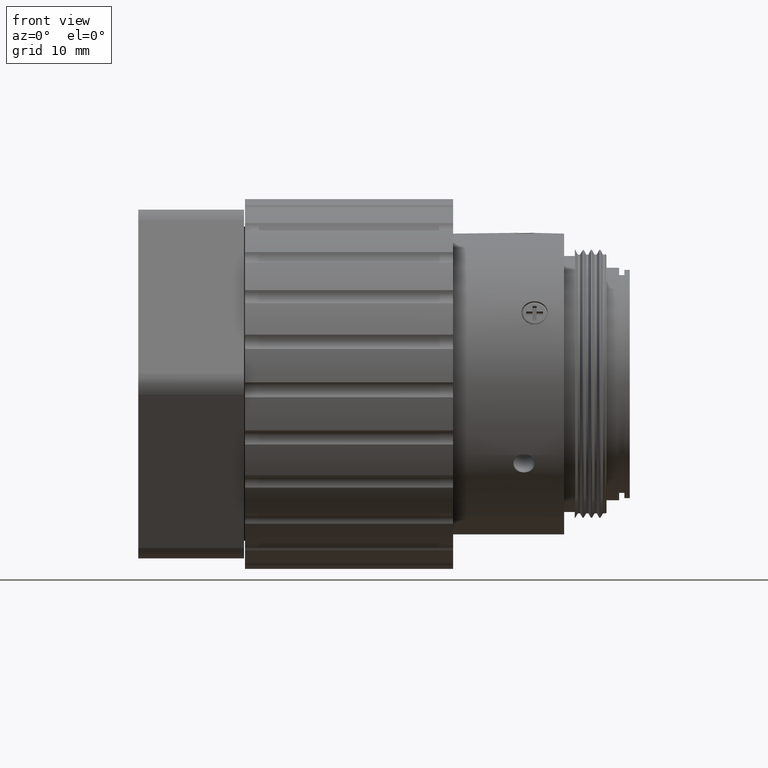
[diagram: clean part render]
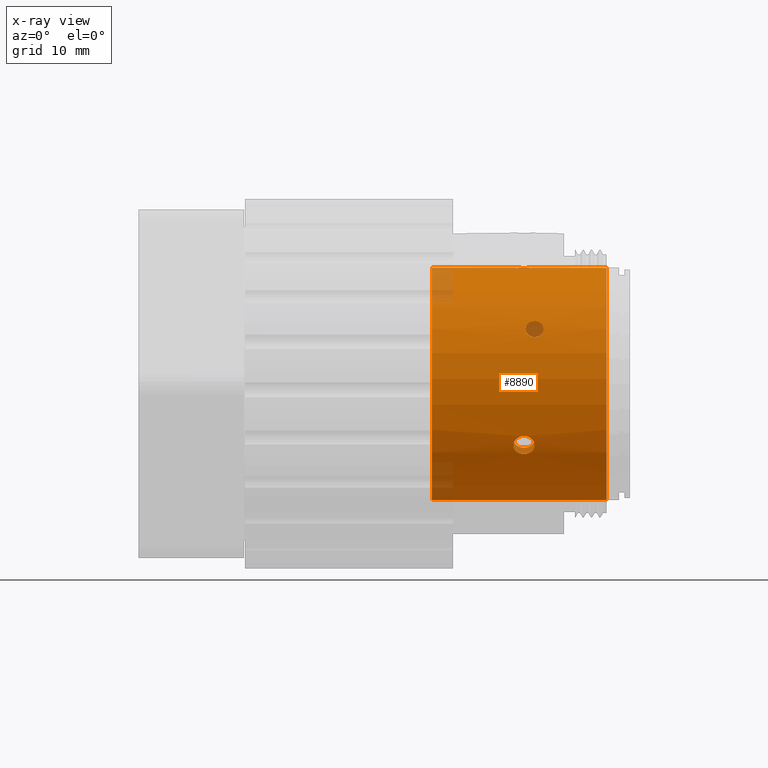
[diagram: x-ray — body ghosted, one internal face saturated and labeled with its STEP entity id]
A machine part, front view, then the same camera in x-ray: the body is ghosted and one INTERNAL B-rep face — a face not visible from any outside direction — is saturated and labeled: STEP entity #8890.
In plain terms, the highlighted cylindrical surface (bore or boss wall) has radius 11 mm, axis along (-1, 0, 0).
Its self-contained STEP definition (entity closure, byte-faithful):
#6 = CARTESIAN_POINT ( 'NONE',  ( 14.45516783254889503, 1.892060042022738253, 57.43273832886931984 ) ) ;
#82 = VERTEX_POINT ( 'NONE', #1341 ) ;
#87 = CARTESIAN_POINT ( 'NONE',  ( 14.15834192716662976, 3.377531255644404151, 57.49755789227680225 ) ) ;
#167 = CARTESIAN_POINT ( 'NONE',  ( 15.83332167469397511, 2.261589787353170955, 57.46819828579433675 ) ) ;
#247 = CARTESIAN_POINT ( 'NONE',  ( 15.09140424304812100, 1.766032332747191846, 57.41783200791917352 ) ) ;
#336 = CARTESIAN_POINT ( 'NONE',  ( 13.95912350834816884, -6.305267067436490791, 40.81285600772690003 ) ) ;
#366 = ORIENTED_EDGE ( 'NONE', *, *, #10154, .F. ) ;
#488 = CARTESIAN_POINT ( 'NONE',  ( 14.82702551233550459, -5.671068282718959352, 39.87675185736815564 ) ) ;
#523 = CARTESIAN_POINT ( 'NONE',  ( 16.38763111918257565, -6.211070583802340117, 52.33972772161328635 ) ) ;
#561 = CARTESIAN_POINT ( 'NONE',  ( 14.08540550108091338, -5.962285016630506362, 40.28048655091044594 ) ) ;
#600 = CARTESIAN_POINT ( 'NONE',  ( 15.95921487769214053, -6.153358166722579625, 52.43071212343854626 ) ) ;
#644 = CARTESIAN_POINT ( 'NONE',  ( 14.95921487769180835, -5.671068282718960241, 39.87675185736816275 ) ) ;
#669 = B_SPLINE_CURVE_WITH_KNOTS ( 'NONE', 3,
 ( #9808, #14505, #10999, #6, #14755, #3670, #14674, #2467, #6207, #2300, #13326, #3829, #87, #9892, #4935, #3581, #12045, #7408, #12360, #1190, #3751, #2392, #8616, #1346, #9967, #12128, #11085, #167, #8693, #1425, #6282, #11166, #247, #5092 ),
 .UNSPECIFIED., .T., .F.,
 ( 4, 2, 2, 2, 2, 2, 2, 2, 2, 2, 2, 2, 2, 2, 2, 2, 4 ),
 ( 0.000000000000000000, 0.0003909235806320006477, 0.0007818471612640012953, 0.001172770741896003027, 0.001563694322528004759, 0.001954617903160006491, 0.002345541483792008223, 0.002736465064424009955, 0.003127388645056011687, 0.003518312225688012985, 0.003909235806320013849, 0.004300159386952008209, 0.004691082967584002568, 0.005082006548215997795, 0.005472930128847992154, 0.005863853709479989983, 0.006254777290111986944 ),
 .UNSPECIFIED. ) ;
#673 = CARTESIAN_POINT ( 'NONE',  ( 15.10913804874458322, -6.531801619660503100, 51.79431253922793843 ) ) ;
#733 = CARTESIAN_POINT ( 'NONE',  ( 15.93343748947647853, 12.92733327984131542, 41.53477132231692082 ) ) ;
#749 = CARTESIAN_POINT ( 'NONE',  ( 16.70222465178511229, -6.779016500053395511, 51.31651339572788828 ) ) ;
#805 = CARTESIAN_POINT ( 'NONE',  ( 14.69731600933590876, 13.22836860792617131, 42.18245509274664329 ) ) ;
#886 = CARTESIAN_POINT ( 'NONE',  ( 14.15834129866419744, 12.50179868050916809, 40.77111266912589116 ) ) ;
#1183 = EDGE_CURVE ( 'NONE', #7741, #7741, #669, .T. ) ;
#1190 = CARTESIAN_POINT ( 'NONE',  ( 15.46326339979231612, 3.638318799853087260, 57.48786163050809250 ) ) ;
#1341 = CARTESIAN_POINT ( 'NONE',  ( 22.76177132339851639, -2.085544498850189221, 36.80532050699031998 ) ) ;
#1346 = CARTESIAN_POINT ( 'NONE',  ( 15.93281006140884237, 3.026861138933424122, 57.50072085419977697 ) ) ;
#1399 = EDGE_LOOP ( 'NONE', ( #3176 ) ) ;
#1425 = CARTESIAN_POINT ( 'NONE',  ( 15.57352772235631200, 1.965373348272092091, 57.44094943941650655 ) ) ;
#1715 = CARTESIAN_POINT ( 'NONE',  ( 16.63995910735381756, -6.819514558504939039, 51.23199204932809181 ) ) ;
#1756 = CARTESIAN_POINT ( 'NONE',  ( 15.57352772235633509, -5.790759073428335846, 40.03782752508016785 ) ) ;
#1803 = CARTESIAN_POINT ( 'NONE',  ( 22.76177132339851639, 3.111155698412859660, 46.50038591147875877 ) ) ;
#1826 = CARTESIAN_POINT ( 'NONE',  ( 15.93343757277475348, -6.097281702604734122, 40.48213440901021443 ) ) ;
#1941 = CARTESIAN_POINT ( 'NONE',  ( 15.43653796252004717, -6.886617627995701874, 51.08848751889957640 ) ) ;
#2016 = CARTESIAN_POINT ( 'NONE',  ( 15.21620481615527432, -6.374997864607789388, 52.07025849649949123 ) ) ;
#2300 = CARTESIAN_POINT ( 'NONE',  ( 13.95912350834815996, 2.893821699904765232, 57.49901219135436747 ) ) ;
#2392 = CARTESIAN_POINT ( 'NONE',  ( 15.75852781685684789, 3.379218406081431869, 57.49750661365925453 ) ) ;
#2467 = CARTESIAN_POINT ( 'NONE',  ( 13.98561978130305228, 2.501489775675345584, 57.48413672473272840 ) ) ;
#2793 = CARTESIAN_POINT ( 'NONE',  ( 14.95921487769180658, 1.766032332747191624, 57.41783200791916641 ) ) ;
#2795 = CARTESIAN_POINT ( 'NONE',  ( 14.45485696128909758, -6.667779446217225292, 41.46302983336038039 ) ) ;
#2873 = AXIS2_PLACEMENT_3D ( 'NONE', #1803, #11549, #6747 ) ;
#2876 = CARTESIAN_POINT ( 'NONE',  ( 14.69731813670790643, -5.686888171913724754, 39.89758744012868874 ) ) ;
#2953 = CARTESIAN_POINT ( 'NONE',  ( 15.75852781685685855, -6.546661551993492978, 41.23397467503669844 ) ) ;
#3176 = ORIENTED_EDGE ( 'NONE', *, *, #13870, .F. ) ;
#3195 = CARTESIAN_POINT ( 'NONE',  ( 15.76008782821700827, 13.08119447451267625, 41.85204488313267746 ) ) ;
#3276 = CARTESIAN_POINT ( 'NONE',  ( 15.93280997408059285, 12.67987227799916639, 41.07321929485870982 ) ) ;
#3431 = DIRECTION ( 'NONE',  ( 0.000000000000000000, -0.4724273177222766407, -0.8813696327136164577 ) ) ;
#3581 = CARTESIAN_POINT ( 'NONE',  ( 14.69703730212079762, 3.738855983080426881, 57.48257700311733487 ) ) ;
#3640 = CIRCLE ( 'NONE', #2873, 10.99999936988827187 ) ;
#3670 = CARTESIAN_POINT ( 'NONE',  ( 14.15990257493192495, 2.150036296001157421, 57.45870562096668266 ) ) ;
#3751 = CARTESIAN_POINT ( 'NONE',  ( 15.57414524869096972, 3.563891673037062890, 57.49145280650083834 ) ) ;
#3829 = CARTESIAN_POINT ( 'NONE',  ( 14.08510849412599519, 3.267289957272679679, 57.49994465951252209 ) ) ;
#4085 = CARTESIAN_POINT ( 'NONE',  ( 15.09140424304811745, 12.29364840976598927, 40.44383460372215211 ) ) ;
#4109 = CARTESIAN_POINT ( 'NONE',  ( 15.95921487769214053, -6.153358166722579625, 52.43071212343854626 ) ) ;
#4189 = CARTESIAN_POINT ( 'NONE',  ( 15.51631845744032923, -6.203028999800769938, 52.35455011765609612 ) ) ;
#4225 = AXIS2_PLACEMENT_3D ( 'NONE', #14359, #15643, #3431 ) ;
#4233 = CARTESIAN_POINT ( 'NONE',  ( 15.95930624688421062, -6.168449945033635196, 40.59226157654215683 ) ) ;
#4262 = CARTESIAN_POINT ( 'NONE',  ( 16.80929170674377815, -6.636028328386069930, 51.59986515539915075 ) ) ;
#4305 = CARTESIAN_POINT ( 'NONE',  ( 15.93281006140883882, -6.373266532381467897, 40.92721721020820524 ) ) ;
#4545 = CARTESIAN_POINT ( 'NONE',  ( 14.15990193852673329, 13.08189828033197699, 41.85357908111937775 ) ) ;
#4709 = CARTESIAN_POINT ( 'NONE',  ( 14.82702551233549748, 12.29364840976598572, 40.44383460372214500 ) ) ;
#4935 = CARTESIAN_POINT ( 'NONE',  ( 14.45485696128908160, 3.638144939169457359, 57.48787020774803125 ) ) ;
#5092 = CARTESIAN_POINT ( 'NONE',  ( 14.95921487769180658, 1.766032332747191846, 57.41783200791917352 ) ) ;
#5188 = CARTESIAN_POINT ( 'NONE',  ( 15.09140658849883820, -6.725217793220715556, 41.57638929585939991 ) ) ;
#5247 = ORIENTED_EDGE ( 'NONE', *, *, #1183, .F. ) ;
#5336 = CARTESIAN_POINT ( 'NONE',  ( 15.46326339979232145, -6.667858948451342194, 41.46318468974909877 ) ) ;
#5376 = CARTESIAN_POINT ( 'NONE',  ( 16.63864354563560255, -6.326293072466001810, 52.15199705766582383 ) ) ;
#5436 = CARTESIAN_POINT ( 'NONE',  ( 15.57414405544168723, 12.40333034483737507, 40.61277079995959127 ) ) ;
#5498 = CARTESIAN_POINT ( 'NONE',  ( 15.46357432512038521, -5.747095859032574694, 39.97858338592953942 ) ) ;
#5508 = CARTESIAN_POINT ( 'NONE',  ( 15.75852718045171308, 12.50090978490456806, 40.76967569753004739 ) ) ;
#5584 = CARTESIAN_POINT ( 'NONE',  ( 14.34428450669262212, 13.15854094968973342, 42.02170631074892526 ) ) ;
#5724 = VERTEX_POINT ( 'NONE', #13079 ) ;
#5809 = FACE_OUTER_BOUND ( 'NONE', #1399, .T. ) ;
#5815 = CARTESIAN_POINT ( 'NONE',  ( 15.09140134157241242, 13.23850318114150149, 42.20657418975501685 ) ) ;
#5991 = EDGE_LOOP ( 'NONE', ( #366 ) ) ;
#6003 = AXIS2_PLACEMENT_3D ( 'NONE', #7516, #11269, #13744 ) ;
#6207 = CARTESIAN_POINT ( 'NONE',  ( 13.95930673995713001, 2.632969599140018602, 57.49076134481770595 ) ) ;
#6282 = CARTESIAN_POINT ( 'NONE',  ( 15.46357432512040653, 1.892234811544464490, 57.43275805611422413 ) ) ;
#6543 = CARTESIAN_POINT ( 'NONE',  ( 13.98499226590716660, -6.372297037670967335, 40.92555006091780001 ) ) ;
#6579 = CARTESIAN_POINT ( 'NONE',  ( 15.84686926962538145, -6.956484509420782558, 50.93238396914464516 ) ) ;
#6627 = CARTESIAN_POINT ( 'NONE',  ( 15.46326192283473233, 12.36300676078620242, 40.55011066430613198 ) ) ;
#6649 = CARTESIAN_POINT ( 'NONE',  ( 16.78678042786502900, -6.476808962929423430, 51.89310182704786456 ) ) ;
#6694 = CARTESIAN_POINT ( 'NONE',  ( 15.76008845671938374, -5.899445607434280703, 40.19025028616916728 ) ) ;
#6747 = DIRECTION ( 'NONE',  ( 0.000000000000000000, -0.4724273177222766407, -0.8813696327136164577 ) ) ;
#6800 = CARTESIAN_POINT ( 'NONE',  ( 16.07155885488439750, -6.153358166722579625, 52.43071212343853915 ) ) ;
#6877 = B_SPLINE_CURVE_WITH_KNOTS ( 'NONE', 3,
 ( #4109, #6800, #11685, #523, #13927, #5376, #15197, #6649, #11757, #4262, #15352, #749, #1715, #9138, #10176, #6579, #12954, #12798, #1941, #8981, #11528, #12725, #15045, #673, #10250, #2016, #7852, #4189, #11610, #600 ),
 .UNSPECIFIED., .T., .F.,
 ( 4, 2, 2, 2, 2, 2, 2, 2, 2, 2, 2, 2, 2, 2, 4 ),
 ( 0.000000000000000000, 0.0003322385726048820206, 0.0006644771452097640412, 0.0009967157178146460617, 0.001328954290419528082, 0.001661192863024410320, 0.001993431435629292123, 0.002657908580839050527, 0.002990147153443929295, 0.003322385726048813267, 0.003654624298653696805, 0.003986862871258580777, 0.004319101443863464750, 0.004651340016468348722, 0.005315817161678107992 ),
 .UNSPECIFIED. ) ;
#6898 = EDGE_CURVE ( 'NONE', #8044, #8044, #13306, .T. ) ;
#7006 = ORIENTED_EDGE ( 'NONE', *, *, #6898, .F. ) ;
#7178 = CARTESIAN_POINT ( 'NONE',  ( 15.57352649958376212, 13.15885322068206875, 42.02238166698270305 ) ) ;
#7408 = CARTESIAN_POINT ( 'NONE',  ( 15.09140658849884353, 3.765036286954714484, 57.48093354415497203 ) ) ;
#7516 = CARTESIAN_POINT ( 'NONE',  ( 6.259214877693430878, 3.111155698412859660, 46.50038591147875877 ) ) ;
#7659 = CARTESIAN_POINT ( 'NONE',  ( 15.09140424304811390, -5.671068282718961129, 39.87675185736817696 ) ) ;
#7741 = VERTEX_POINT ( 'NONE', #2793 ) ;
#7820 = CARTESIAN_POINT ( 'NONE',  ( 15.22139452702237250, -5.686931528784691103, 39.89764481554989572 ) ) ;
#7852 = CARTESIAN_POINT ( 'NONE',  ( 15.27847021090253499, -6.327032117040109149, 52.15077697314193728 ) ) ;
#7894 = CARTESIAN_POINT ( 'NONE',  ( 14.69703730212081005, -6.713550918495082342, 41.55289475814430489 ) ) ;
#7972 = CARTESIAN_POINT ( 'NONE',  ( 15.95912301557770441, -6.305992899069982727, 40.81405789175625642 ) ) ;
#8044 = VERTEX_POINT ( 'NONE', #14268 ) ;
#8058 = CARTESIAN_POINT ( 'NONE',  ( 13.98499218260881705, 12.68083174270990909, 41.07489322208807891 ) ) ;
#8139 = CARTESIAN_POINT ( 'NONE',  ( 14.45516635559128460, 13.18839808615239839, 42.08997669344411463 ) ) ;
#8218 = FACE_BOUND ( 'NONE', #12832, .T. ) ;
#8388 = CARTESIAN_POINT ( 'NONE',  ( 15.95930624703548517, 12.86754438487778351, 41.41807404482820942 ) ) ;
#8536 = VERTEX_POINT ( 'NONE', #13406 ) ;
#8616 = CARTESIAN_POINT ( 'NONE',  ( 15.83302466206602510, 3.267594447492931486, 57.49993141766192650 ) ) ;
#8693 = CARTESIAN_POINT ( 'NONE',  ( 15.76008845671939262, 2.151718598493141066, 57.45886335837040804 ) ) ;
#8890 = ADVANCED_FACE ( 'NONE', ( #14436, #5809, #8218, #13093, #9495, #11817 ), #13920, .F. ) ;
#8981 = CARTESIAN_POINT ( 'NONE',  ( 15.27978576717443993, -6.820120926019070495, 51.23070222809816698 ) ) ;
#9030 = CARTESIAN_POINT ( 'NONE',  ( 14.15834192716663864, -6.545862385360424085, 41.23248792058948453 ) ) ;
#9110 = CARTESIAN_POINT ( 'NONE',  ( 15.83332167469397156, -5.962465486155889671, 40.28073406315399296 ) ) ;
#9138 = CARTESIAN_POINT ( 'NONE',  ( 16.40211024124351979, -6.920558768258903370, 51.01591246194912088 ) ) ;
#9345 = CARTESIAN_POINT ( 'NONE',  ( 13.95930673980586256, 12.86819296850609184, 41.41931931429998315 ) ) ;
#9422 = CARTESIAN_POINT ( 'NONE',  ( 15.83332126125764816, 13.03434313156190072, 41.75222608636456556 ) ) ;
#9495 = FACE_BOUND ( 'NONE', #13691, .T. ) ;
#9805 = VERTEX_POINT ( 'NONE', #12125 ) ;
#9808 = CARTESIAN_POINT ( 'NONE',  ( 14.95921487769180658, 1.766032332747191846, 57.41783200791917352 ) ) ;
#9892 = CARTESIAN_POINT ( 'NONE',  ( 14.34490325579986525, 3.564635449963304392, 57.49143243251911173 ) ) ;
#9967 = CARTESIAN_POINT ( 'NONE',  ( 15.95912301557771862, 2.895225477823361260, 57.49903983797315021 ) ) ;
#10153 = CARTESIAN_POINT ( 'NONE',  ( 14.95921487769180658, 12.29364840976598749, 40.44383460372215211 ) ) ;
#10154 = EDGE_CURVE ( 'NONE', #5724, #5724, #12386, .T. ) ;
#10176 = CARTESIAN_POINT ( 'NONE',  ( 16.18390062150263731, -6.956484801707592425, 50.93238330519156420 ) ) ;
#10209 = EDGE_LOOP ( 'NONE', ( #5247 ) ) ;
#10215 = CARTESIAN_POINT ( 'NONE',  ( 14.15990257493192672, -5.898467851589526134, 40.18887223817611698 ) ) ;
#10250 = CARTESIAN_POINT ( 'NONE',  ( 15.13112262702076549, -6.477609663639927184, 51.89169084313228808 ) ) ;
#10299 = CARTESIAN_POINT ( 'NONE',  ( 15.83302466206601089, -6.492949514564722691, 41.13609308922676888 ) ) ;
#10376 = CARTESIAN_POINT ( 'NONE',  ( 14.95921487769180835, -5.671068282718960241, 39.87675185736816275 ) ) ;
#10389 = CARTESIAN_POINT ( 'NONE',  ( 15.83302425430273708, 12.55882177239966957, 40.86513257028430246 ) ) ;
#10461 = CARTESIAN_POINT ( 'NONE',  ( 14.69703522836123888, 12.30816235271274905, 40.46568646262398516 ) ) ;
#10543 = CARTESIAN_POINT ( 'NONE',  ( 13.98561969397474058, 12.92819569711088690, 41.53649629860758807 ) ) ;
#10694 = CARTESIAN_POINT ( 'NONE',  ( 14.34490203302729938, 12.40294184945327594, 40.61213849598500047 ) ) ;
#10774 = CARTESIAN_POINT ( 'NONE',  ( 14.82702316688476252, 13.23850290927668105, 42.20657354853699417 ) ) ;
#10999 = CARTESIAN_POINT ( 'NONE',  ( 14.69731813670791709, 1.791986421317952605, 57.42111464246660546 ) ) ;
#11085 = CARTESIAN_POINT ( 'NONE',  ( 15.93343757277476413, 2.503415711420065914, 57.48425238115301994 ) ) ;
#11166 = CARTESIAN_POINT ( 'NONE',  ( 15.22139452702237961, 1.792057788325750467, 57.42112350290768319 ) ) ;
#11269 = DIRECTION ( 'NONE',  ( 1.000000000000000000, -0.000000000000000000, -0.000000000000000000 ) ) ;
#11365 = ORIENTED_EDGE ( 'NONE', *, *, #14543, .F. ) ;
#11528 = CARTESIAN_POINT ( 'NONE',  ( 15.21646114923168369, -6.779128838770777321, 51.31626828576587940 ) ) ;
#11549 = DIRECTION ( 'NONE',  ( -1.000000000000000000, 0.000000000000000000, 0.000000000000000000 ) ) ;
#11590 = CARTESIAN_POINT ( 'NONE',  ( 15.22111161867570495, 12.30812270083457705, 40.46562646690931331 ) ) ;
#11610 = CARTESIAN_POINT ( 'NONE',  ( 15.73452692330762304, -6.153358166722578737, 52.43071212343856757 ) ) ;
#11685 = CARTESIAN_POINT ( 'NONE',  ( 16.18179452843043009, -6.165377771569250598, 52.41204747255535779 ) ) ;
#11757 = CARTESIAN_POINT ( 'NONE',  ( 16.80913763851256704, -6.531233184242041467, 51.79534782325035991 ) ) ;
#11817 = FACE_BOUND ( 'NONE', #15759, .T. ) ;
#11823 = CARTESIAN_POINT ( 'NONE',  ( 15.46357279409453689, 13.18832850900733078, 42.08981713114521028 ) ) ;
#11898 = CARTESIAN_POINT ( 'NONE',  ( 14.08540509331756141, 13.03446657968690481, 41.75250474422158931 ) ) ;
#12045 = CARTESIAN_POINT ( 'NONE',  ( 14.82702841381119363, 3.765036982193478821, 57.48093350275416924 ) ) ;
#12125 = CARTESIAN_POINT ( 'NONE',  ( 15.95921487769214053, -6.153358166722577849, 52.43071212343852494 ) ) ;
#12128 = CARTESIAN_POINT ( 'NONE',  ( 15.95930624688420707, 2.634372757363986128, 57.49082230327317689 ) ) ;
#12283 = ORIENTED_EDGE ( 'NONE', *, *, #15026, .F. ) ;
#12360 = CARTESIAN_POINT ( 'NONE',  ( 15.22111374604770795, 3.738926575347476966, 57.48257273095384789 ) ) ;
#12386 = CIRCLE ( 'NONE', #6003, 10.99999936988827187 ) ;
#12530 = CARTESIAN_POINT ( 'NONE',  ( 14.82702841381117409, -6.725218104985961176, 41.57638991865423606 ) ) ;
#12725 = CARTESIAN_POINT ( 'NONE',  ( 15.13164926682541811, -6.687851196893499939, 51.49937732326988282 ) ) ;
#12764 = CARTESIAN_POINT ( 'NONE',  ( 15.57414524869096084, -6.633755434682517382, 41.39693331919934138 ) ) ;
#12798 = CARTESIAN_POINT ( 'NONE',  ( 15.53079760902386219, -6.912666647700001832, 51.03081648863535236 ) ) ;
#12832 = EDGE_LOOP ( 'NONE', ( #11365 ) ) ;
#12954 = CARTESIAN_POINT ( 'NONE',  ( 15.73663374753582822, -6.947595498359533828, 50.95272686903095405 ) ) ;
#12999 = B_SPLINE_CURVE_WITH_KNOTS ( 'NONE', 3,
 ( #10153, #4085, #11590, #6627, #5436, #5508, #10389, #3276, #14443, #8388, #733, #9422, #3195, #7178, #11823, #15650, #5815, #10774, #805, #8139, #5584, #4545, #11898, #10543, #9345, #14284, #8058, #15409, #886, #10694, #13100, #10461, #4709, #15332 ),
 .UNSPECIFIED., .T., .F.,
 ( 4, 2, 2, 2, 2, 2, 2, 2, 2, 2, 2, 2, 2, 2, 2, 2, 4 ),
 ( 0.000000000000000000, 0.0003909235806320078034, 0.0007818471612640156068, 0.001172770741896019724, 0.001563694322528023841, 0.001954617903160027741, 0.002345541483792032075, 0.002736465064424036409, 0.003127388645056040743, 0.003518312225688044644, 0.003909235806320049411, 0.004300159386952053311, 0.004691082967584058079, 0.005082006548216061979, 0.005472930128848066747, 0.005863853709480070647, 0.006254777290112074548 ),
 .UNSPECIFIED. ) ;
#13079 = CARTESIAN_POINT ( 'NONE',  ( 6.259214877693430878, -2.085544498850189221, 36.80532050699031998 ) ) ;
#13093 = FACE_BOUND ( 'NONE', #10209, .T. ) ;
#13100 = CARTESIAN_POINT ( 'NONE',  ( 14.45485543026320485, 12.36310209798910442, 40.55025846270822143 ) ) ;
#13306 = B_SPLINE_CURVE_WITH_KNOTS ( 'NONE', 3,
 ( #644, #488, #2876, #14041, #15008, #10215, #561, #15247, #15083, #336, #6543, #15171, #9030, #13896, #2795, #7894, #12530, #5188, #14928, #5336, #12764, #2953, #10299, #4305, #7972, #4233, #1826, #9110, #6694, #1756, #5498, #7820, #7659, #10376 ),
 .UNSPECIFIED., .T., .F.,
 ( 4, 2, 2, 2, 2, 2, 2, 2, 2, 2, 2, 2, 2, 2, 2, 2, 4 ),
 ( 0.000000000000000000, 0.0003909235806319674711, 0.0007818471612639349422, 0.001172770741895902413, 0.001563694322527869884, 0.001954617903159837355, 0.002345541483791804827, 0.002736465064423772298, 0.003127388645055739769, 0.003518312225687706806, 0.003909235806319674711, 0.004300159386951642182, 0.004691082967583609653, 0.005082006548215577124, 0.005472930128847544595, 0.005863853709479515536, 0.006254777290111486476 ),
 .UNSPECIFIED. ) ;
#13326 = CARTESIAN_POINT ( 'NONE',  ( 13.98499226590716304, 3.024932597940785062, 57.50071482179688331 ) ) ;
#13406 = CARTESIAN_POINT ( 'NONE',  ( 14.95921487769180658, 12.29364840976598927, 40.44383460372213790 ) ) ;
#13691 = EDGE_LOOP ( 'NONE', ( #7006 ) ) ;
#13744 = DIRECTION ( 'NONE',  ( 0.000000000000000000, -0.4724273177222766407, -0.8813696327136164577 ) ) ;
#13870 = EDGE_CURVE ( 'NONE', #82, #82, #3640, .T. ) ;
#13896 = CARTESIAN_POINT ( 'NONE',  ( 14.34490325579989900, -6.634109678759882556, 41.39758763590312185 ) ) ;
#13920 = CYLINDRICAL_SURFACE ( 'NONE', #4225, 10.99999936988827187 ) ;
#13927 = CARTESIAN_POINT ( 'NONE',  ( 16.48189096285895872, -6.244675662227333390, 52.28610690388153870 ) ) ;
#14041 = CARTESIAN_POINT ( 'NONE',  ( 14.45516783254889148, -5.746991389976492393, 39.97844189470636422 ) ) ;
#14268 = CARTESIAN_POINT ( 'NONE',  ( 14.95921487769180658, -5.671068282718961129, 39.87675185736816275 ) ) ;
#14284 = CARTESIAN_POINT ( 'NONE',  ( 13.95912350849936523, 12.74491256471562650, 41.18928972557527146 ) ) ;
#14359 = CARTESIAN_POINT ( 'NONE',  ( -17.27467827770134789, 3.111155698412859660, 46.50038591147875877 ) ) ;
#14436 = FACE_OUTER_BOUND ( 'NONE', #5991, .T. ) ;
#14443 = CARTESIAN_POINT ( 'NONE',  ( 15.95912301542650980, 12.74423441451786410, 41.18805981450368137 ) ) ;
#14505 = CARTESIAN_POINT ( 'NONE',  ( 14.82702551233549215, 1.766032332747191846, 57.41783200791917352 ) ) ;
#14543 = EDGE_CURVE ( 'NONE', #8536, #8536, #12999, .T. ) ;
#14674 = CARTESIAN_POINT ( 'NONE',  ( 14.08540550108090805, 2.261285200699827413, 57.46816575072254096 ) ) ;
#14755 = CARTESIAN_POINT ( 'NONE',  ( 14.34428569994194369, 1.966112430340888340, 57.44101648175610819 ) ) ;
#14928 = CARTESIAN_POINT ( 'NONE',  ( 15.22111374604771150, -6.713582514826484271, 41.55295802892261037 ) ) ;
#15008 = CARTESIAN_POINT ( 'NONE',  ( 14.34428569994194902, -5.791186674831936720, 40.03843406775738600 ) ) ;
#15026 = EDGE_CURVE ( 'NONE', #9805, #9805, #6877, .T. ) ;
#15045 = CARTESIAN_POINT ( 'NONE',  ( 15.10929211676763728, -6.636575636150561230, 51.59881888714363640 ) ) ;
#15083 = CARTESIAN_POINT ( 'NONE',  ( 13.95930673995713711, -6.167695574350632981, 40.59107688510240308 ) ) ;
#15171 = CARTESIAN_POINT ( 'NONE',  ( 14.08510849412600052, -6.492808737233623617, 41.13582277203553161 ) ) ;
#15197 = CARTESIAN_POINT ( 'NONE',  ( 16.70196832257781239, -6.374855397878397056, 52.07048867302808759 ) ) ;
#15247 = CARTESIAN_POINT ( 'NONE',  ( 13.98561978130306471, -6.096218573334306612, 40.48052432793939914 ) ) ;
#15332 = CARTESIAN_POINT ( 'NONE',  ( 14.95921487769180658, 12.29364840976598749, 40.44383460372215211 ) ) ;
#15352 = CARTESIAN_POINT ( 'NONE',  ( 16.78730707043965964, -6.687119737176002943, 51.50082474704016278 ) ) ;
#15409 = CARTESIAN_POINT ( 'NONE',  ( 14.08510808068960252, 12.55898627200609496, 40.86539097198666326 ) ) ;
#15643 = DIRECTION ( 'NONE',  ( -1.000000000000000000, 0.000000000000000000, 0.000000000000000000 ) ) ;
#15650 = CARTESIAN_POINT ( 'NONE',  ( 15.22139245326281376, 13.22834106499427698, 42.18238995515037715 ) ) ;
#15759 = EDGE_LOOP ( 'NONE', ( #12283 ) ) ;